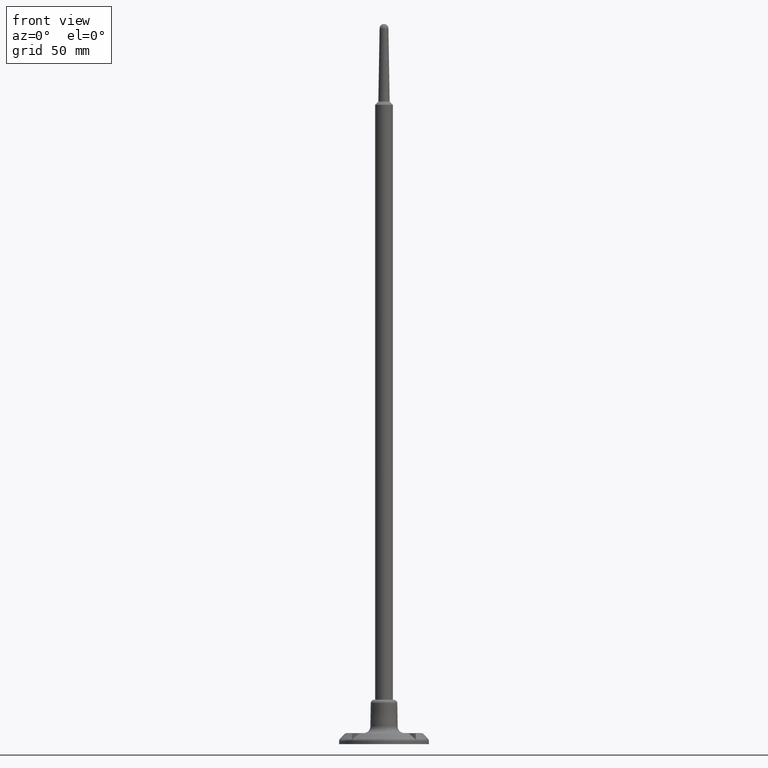
[diagram: clean part render]
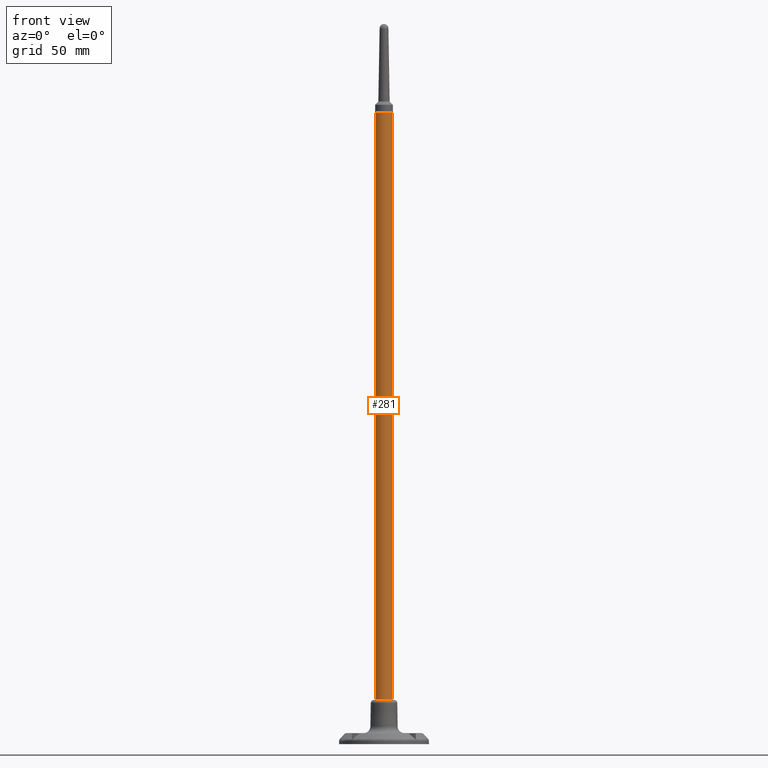
[diagram: same view with one face highlighted and labeled with its STEP entity id]
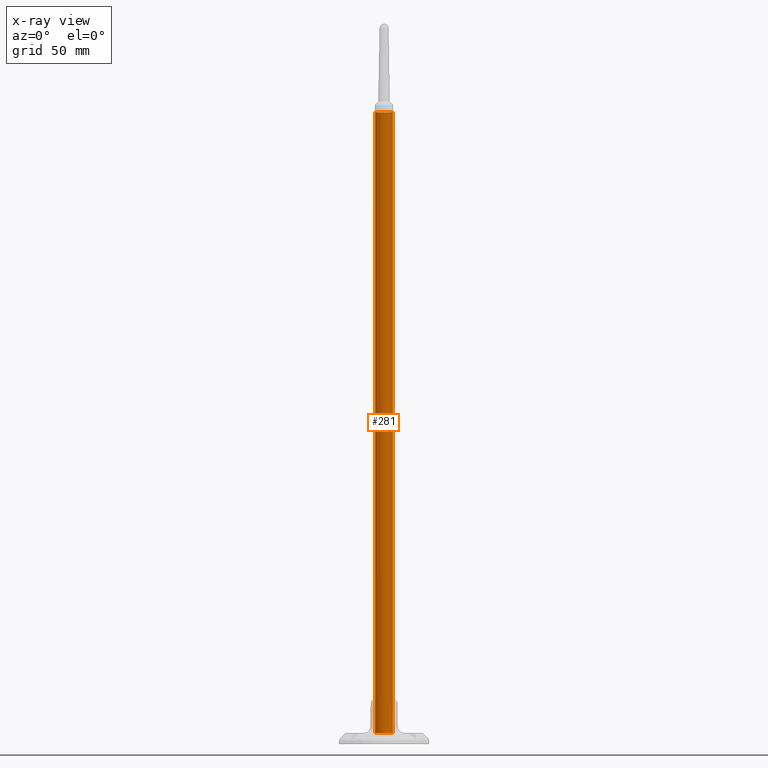
[diagram: x-ray of the same camera — body ghosted, the highlighted face saturated]
A machine part, front view. The second image highlights one B-rep face of the part: STEP entity #281.
The next image is the same camera in x-ray: the body ghosted, the highlighted face saturated — about 0% of this face is hidden behind the body in this view.
In plain terms, the highlighted cylindrical surface (bore or boss wall) has radius 4 mm, axis along (0, -0, 1).
Its self-contained STEP definition (entity closure, byte-faithful):
#281 = ADVANCED_FACE( '', ( #548, #549 ), #550, .T. );
#548 = FACE_OUTER_BOUND( '', #836, .T. );
#549 = FACE_OUTER_BOUND( '', #837, .T. );
#550 = CYLINDRICAL_SURFACE( '', #838, 3.99999999999988 );
#836 = EDGE_LOOP( '', ( #1716 ) );
#837 = EDGE_LOOP( '', ( #1717 ) );
#838 = AXIS2_PLACEMENT_3D( '', #1718, #1719, #1720 );
#1716 = ORIENTED_EDGE( '', *, *, #2033, .F. );
#1717 = ORIENTED_EDGE( '', *, *, #2031, .T. );
#1718 = CARTESIAN_POINT( '', ( 5.76947404292554E-064, 6.42911502455149E-015, 284.999627999970 ) );
#1719 = DIRECTION( '', ( 2.06052644390220E-066, -2.10677705559502E-067, 1.00000000000000 ) );
#1720 = DIRECTION( '', ( -0.0703245249480685, -0.997524165717718, -6.52505591632100E-068 ) );
#2031 = EDGE_CURVE( '', #2477, #2477, #2478, .T. );
#2033 = EDGE_CURVE( '', #2481, #2481, #2482, .T. );
#2477 = VERTEX_POINT( '', #3267 );
#2478 = CIRCLE( '', #3268, 3.99999999999988 );
#2481 = VERTEX_POINT( '', #3271 );
#2482 = CIRCLE( '', #3272, 3.99999999999988 );
#3267 = CARTESIAN_POINT( '', ( 0.281298099792265, 3.99009666287076, 4.99962800000034 ) );
#3268 = AXIS2_PLACEMENT_3D( '', #3626, #3627, #3628 );
#3271 = CARTESIAN_POINT( '', ( 0.281298099792265, 3.99009666287076, 284.999627999970 ) );
#3272 = AXIS2_PLACEMENT_3D( '', #3632, #3633, #3634 );
#3626 = CARTESIAN_POINT( '', ( 0.000000000000000, 6.42911502455149E-015, 4.99962800000034 ) );
#3627 = DIRECTION( '', ( 2.06052644390220E-066, -2.10677705559502E-067, 1.00000000000000 ) );
#3628 = DIRECTION( '', ( 0.0703245249480685, 0.997524165717718, 6.52505591632100E-068 ) );
#3632 = CARTESIAN_POINT( '', ( 5.76947404292554E-064, 6.42911502455149E-015, 284.999627999970 ) );
#3633 = DIRECTION( '', ( 2.06052644390220E-066, -2.10677705559502E-067, 1.00000000000000 ) );
#3634 = DIRECTION( '', ( 0.0703245249480685, 0.997524165717718, 6.52505591632100E-068 ) );